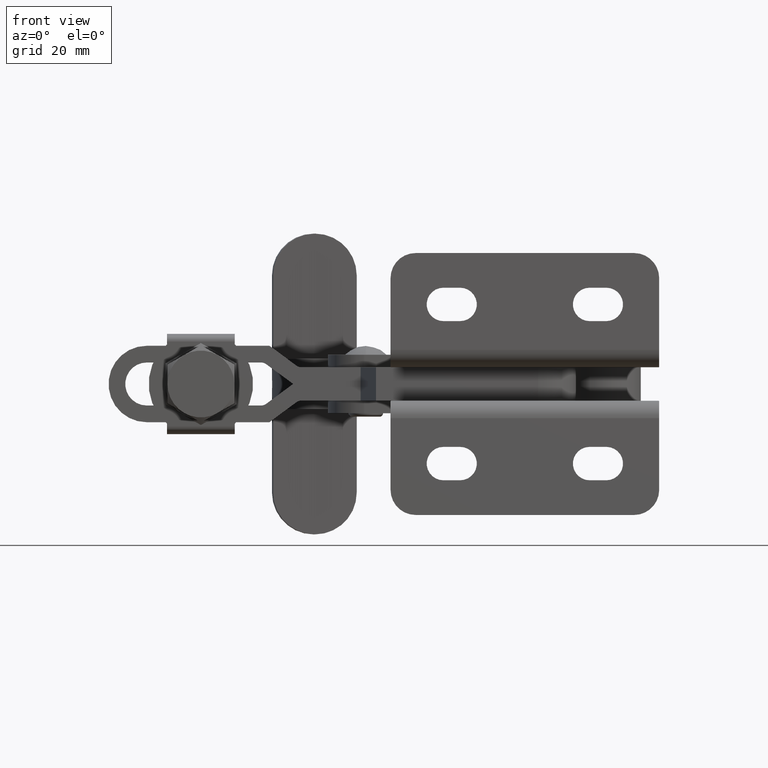
[diagram: clean part render]
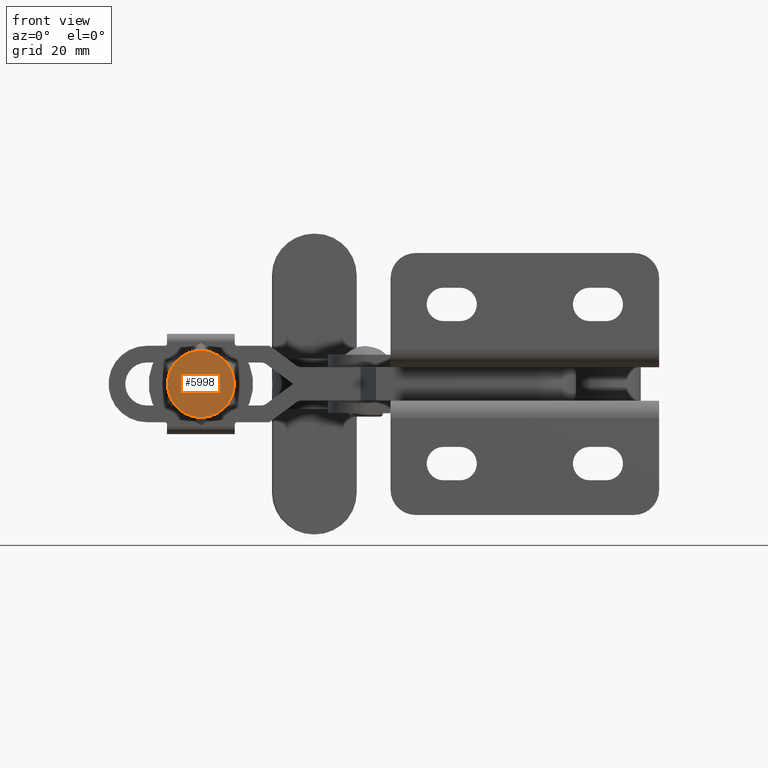
[diagram: same view with one face highlighted and labeled with its STEP entity id]
A machine part, front view. The second image highlights one B-rep face of the part: STEP entity #5998.
In plain terms, the highlighted planar face has unit normal (0, 1, 0).
Its self-contained STEP definition (entity closure, byte-faithful):
#96 = DIRECTION ( 'NONE',  ( 2.121150477449812400E-016, 1.000000000000000000, 1.224646799147356200E-016 ) ) ;
#513 = DIRECTION ( 'NONE',  ( 2.121150477449812600E-016, 1.000000000000000000, 1.224646799147356400E-016 ) ) ;
#1028 = CIRCLE ( 'NONE', #12798, 7.999999999999996400 ) ;
#1129 = CIRCLE ( 'NONE', #5742, 7.999999999999996400 ) ;
#1144 = AXIS2_PLACEMENT_3D ( 'NONE', #3410, #9486, #2387 ) ;
#1277 = EDGE_CURVE ( 'NONE', #5725, #10613, #2985, .T. ) ;
#1382 = CARTESIAN_POINT ( 'NONE',  ( -96.33412365450573100, -52.70000000000001000, -4.000000000000111900 ) ) ;
#1934 = FACE_OUTER_BOUND ( 'NONE', #3760, .T. ) ;
#1935 = CARTESIAN_POINT ( 'NONE',  ( -88.33412365450573100, -52.70000000000001000, -4.000000000000109200 ) ) ;
#2167 = CIRCLE ( 'NONE', #12376, 7.999999999999996400 ) ;
#2383 = DIRECTION ( 'NONE',  ( 0.5000000000000006700, 0.0000000000000000000, -0.8660254037844382600 ) ) ;
#2387 = DIRECTION ( 'NONE',  ( -0.5000000000000006700, 0.0000000000000000000, 0.8660254037844383700 ) ) ;
#2469 = PLANE ( 'NONE',  #7976 ) ;
#2670 = CARTESIAN_POINT ( 'NONE',  ( -96.33412365450573100, -52.70000000000001000, -4.000000000000111900 ) ) ;
#2985 = CIRCLE ( 'NONE', #1144, 7.999999999999997300 ) ;
#3410 = CARTESIAN_POINT ( 'NONE',  ( -96.33412365450573100, -52.70000000000001000, -4.000000000000111900 ) ) ;
#3520 = EDGE_CURVE ( 'NONE', #8176, #8822, #2167, .T. ) ;
#3689 = DIRECTION ( 'NONE',  ( 0.5000000000000006700, 0.0000000000000000000, -0.8660254037844382600 ) ) ;
#3760 = EDGE_LOOP ( 'NONE', ( #7660, #12807, #9716, #10247, #13016, #4508 ) ) ;
#4349 = CARTESIAN_POINT ( 'NONE',  ( -104.3341236545057300, -52.70000000000001000, -4.000000000000112800 ) ) ;
#4508 = ORIENTED_EDGE ( 'NONE', *, *, #5497, .F. ) ;
#4590 = AXIS2_PLACEMENT_3D ( 'NONE', #6130, #96, #7140 ) ;
#4625 = DIRECTION ( 'NONE',  ( 2.121150477449812400E-016, 1.000000000000000000, 1.224646799147356200E-016 ) ) ;
#4754 = CARTESIAN_POINT ( 'NONE',  ( -96.33412365450573100, -52.70000000000001000, -4.000000000000111900 ) ) ;
#5053 = CARTESIAN_POINT ( 'NONE',  ( -100.3341236545057500, -52.70000000000001000, 2.928203230275393300 ) ) ;
#5477 = CARTESIAN_POINT ( 'NONE',  ( -92.33412365450573100, -52.70000000000001000, -10.92820323027561700 ) ) ;
#5497 = EDGE_CURVE ( 'NONE', #8822, #10613, #1028, .T. ) ;
#5542 = CARTESIAN_POINT ( 'NONE',  ( -92.33412365450574600, -52.70000000000001000, 2.928203230275408000 ) ) ;
#5725 = VERTEX_POINT ( 'NONE', #5053 ) ;
#5742 = AXIS2_PLACEMENT_3D ( 'NONE', #10712, #4625, #11730 ) ;
#5781 = DIRECTION ( 'NONE',  ( 0.5000000000000006700, 0.0000000000000000000, -0.8660254037844382600 ) ) ;
#5849 = CIRCLE ( 'NONE', #4590, 7.999999999999996400 ) ;
#5998 = ADVANCED_FACE ( 'NONE', ( #1934 ), #2469, .F. ) ;
#6130 = CARTESIAN_POINT ( 'NONE',  ( -96.33412365450573100, -52.70000000000001000, -4.000000000000111900 ) ) ;
#6562 = CARTESIAN_POINT ( 'NONE',  ( -104.3341236545057300, -52.70000000000001000, -8.618802153517132000 ) ) ;
#7140 = DIRECTION ( 'NONE',  ( 0.5000000000000006700, 0.0000000000000000000, -0.8660254037844382600 ) ) ;
#7268 = EDGE_CURVE ( 'NONE', #10704, #10050, #5849, .T. ) ;
#7560 = DIRECTION ( 'NONE',  ( 0.5000000000000011100, 0.0000000000000000000, -0.8660254037844379300 ) ) ;
#7660 = ORIENTED_EDGE ( 'NONE', *, *, #3520, .F. ) ;
#7976 = AXIS2_PLACEMENT_3D ( 'NONE', #6562, #513, #7560 ) ;
#8176 = VERTEX_POINT ( 'NONE', #5477 ) ;
#8466 = DIRECTION ( 'NONE',  ( 2.121150477449812400E-016, 1.000000000000000000, 1.224646799147356200E-016 ) ) ;
#8822 = VERTEX_POINT ( 'NONE', #10878 ) ;
#9486 = DIRECTION ( 'NONE',  ( -2.121150477449812400E-016, -1.000000000000000000, -1.224646799147356200E-016 ) ) ;
#9716 = ORIENTED_EDGE ( 'NONE', *, *, #7268, .F. ) ;
#9758 = DIRECTION ( 'NONE',  ( 2.121150477449812400E-016, 1.000000000000000000, 1.224646799147356200E-016 ) ) ;
#10050 = VERTEX_POINT ( 'NONE', #1935 ) ;
#10179 = EDGE_CURVE ( 'NONE', #5725, #10704, #1129, .T. ) ;
#10247 = ORIENTED_EDGE ( 'NONE', *, *, #10179, .F. ) ;
#10613 = VERTEX_POINT ( 'NONE', #4349 ) ;
#10704 = VERTEX_POINT ( 'NONE', #5542 ) ;
#10712 = CARTESIAN_POINT ( 'NONE',  ( -96.33412365450573100, -52.70000000000001000, -4.000000000000111900 ) ) ;
#10793 = AXIS2_PLACEMENT_3D ( 'NONE', #1382, #8466, #2383 ) ;
#10878 = CARTESIAN_POINT ( 'NONE',  ( -100.3341236545057300, -52.70000000000001000, -10.92820323027563300 ) ) ;
#11730 = DIRECTION ( 'NONE',  ( 0.5000000000000006700, 0.0000000000000000000, -0.8660254037844382600 ) ) ;
#11865 = DIRECTION ( 'NONE',  ( 2.121150477449812400E-016, 1.000000000000000000, 1.224646799147356200E-016 ) ) ;
#12283 = CIRCLE ( 'NONE', #10793, 7.999999999999996400 ) ;
#12376 = AXIS2_PLACEMENT_3D ( 'NONE', #4754, #11865, #5781 ) ;
#12798 = AXIS2_PLACEMENT_3D ( 'NONE', #2670, #9758, #3689 ) ;
#12807 = ORIENTED_EDGE ( 'NONE', *, *, #13117, .F. ) ;
#13016 = ORIENTED_EDGE ( 'NONE', *, *, #1277, .T. ) ;
#13117 = EDGE_CURVE ( 'NONE', #10050, #8176, #12283, .T. ) ;